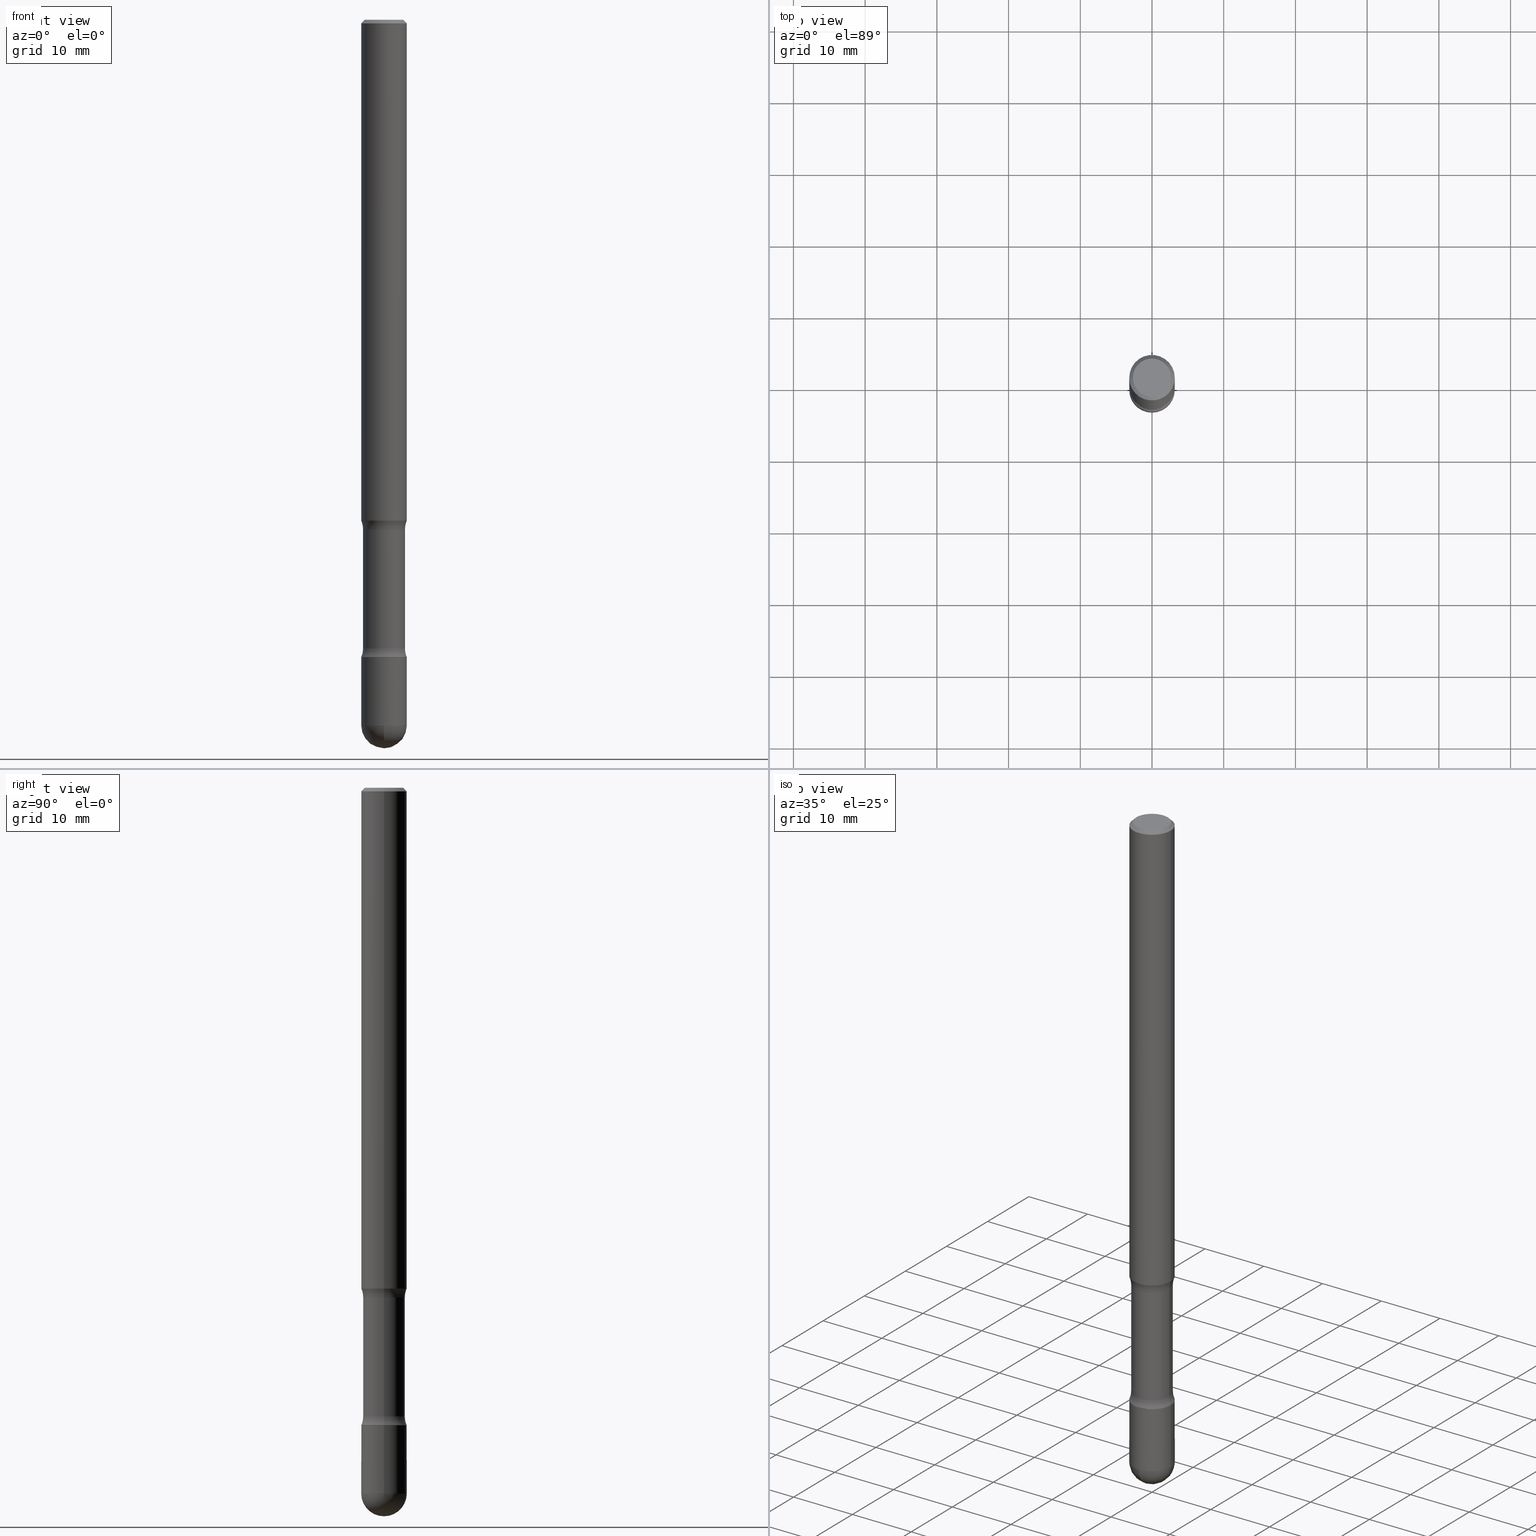
[diagram: canonical four-view strip — front | top / right | iso, engineering-drawing reading convention]
A machine part, canonical four-view strip (front | top / right | iso — engineering-drawing reading convention). The complete STEP part file that produces these views, byte-faithful:
ISO-10303-21;
HEADER;
FILE_DESCRIPTION (( 'STEP AP203' ),
    '1' );
FILE_NAME ('36480.STEP',
    '2024-02-29T19:24:48',
    ( '' ),
    ( '' ),
    'SwSTEP 2.0',
    'SolidWorks 2023',
    '' );
FILE_SCHEMA (( 'CONFIG_CONTROL_DESIGN' ));
ENDSEC;

DATA;
#1 = ORIENTED_EDGE ( 'NONE', *, *, #37, .T. ) ;
#2 = CARTESIAN_POINT ( 'NONE',  ( 0.2399999999999878897, -1.141914015581603833E-14, -2.798989794855663682 ) ) ;
#3 = ORIENTED_EDGE ( 'NONE', *, *, #491, .T. ) ;
#4 = DIRECTION ( 'NONE',  ( 1.000000000000000000, -6.982962677686265922E-15, 4.883557194083113462E-29 ) ) ;
#5 = CARTESIAN_POINT ( 'NONE',  ( 4.890937612370354609E-31, -6.982962677686407473E-17, -0.02000000000000033348 ) ) ;
#6 = VECTOR ( 'NONE', #102, 39.37007874015748143 ) ;
#7 = ADVANCED_FACE ( 'NONE', ( #298 ), #241, .T. ) ;
#8 = CIRCLE ( 'NONE', #41, 0.1244999999999993195 ) ;
#9 = CARTESIAN_POINT ( 'NONE',  ( -0.2400000000000005740, -1.037322668877399552E-14, -3.451010205144335874 ) ) ;
#10 = ORIENTED_EDGE ( 'NONE', *, *, #510, .F. ) ;
#11 = EDGE_LOOP ( 'NONE', ( #12, #217, #316, #471 ) ) ;
#12 = ORIENTED_EDGE ( 'NONE', *, *, #264, .F. ) ;
#13 = DIRECTION ( 'NONE',  ( -1.000000000000000000, 6.982962677686274599E-15, 0.000000000000000000 ) ) ;
#14 = EDGE_LOOP ( 'NONE', ( #253, #379, #92, #93 ) ) ;
#15 = ORIENTED_EDGE ( 'NONE', *, *, #146, .F. ) ;
#16 = EDGE_LOOP ( 'NONE', ( #364, #327, #546, #540 ) ) ;
#17 = DIRECTION ( 'NONE',  ( -6.982962677686266711E-15, -1.000000000000000000, 3.491481338843145583E-15 ) ) ;
#18 = EDGE_LOOP ( 'NONE', ( #312, #45, #462, #76 ) ) ;
#19 = ORIENTED_EDGE ( 'NONE', *, *, #183, .F. ) ;
#20 = ORIENTED_EDGE ( 'NONE', *, *, #249, .F. ) ;
#21 = CLOSED_SHELL ( 'NONE', ( #299, #448, #156, #484, #136, #216, #409, #324, #398, #276, #224, #541, #422, #548 ) ) ;
#22 = PRODUCT ( '36480', '36480', '', ( #384 ) ) ;
#23 = DIRECTION ( 'NONE',  ( 2.445468806185136597E-29, -3.491481338843145583E-15, -1.000000000000000000 ) ) ;
#24 = AXIS2_PLACEMENT_3D ( 'NONE', #557, #555, #561 ) ;
#25 = ORIENTED_EDGE ( 'NONE', *, *, #79, .T. ) ;
#26 = DIRECTION ( 'NONE',  ( 2.445468806185136597E-29, -3.491481338843145583E-15, -1.000000000000000000 ) ) ;
#27 = LINE ( 'NONE', #335, #339 ) ;
#28 = APPLICATION_CONTEXT ( 'configuration controlled 3d designs of mechanical parts and assemblies' ) ;
#29 = EDGE_CURVE ( 'NONE', #254, #181, #164, .T. ) ;
#30 = DIRECTION ( 'NONE',  ( 2.438088387897960049E-29, -3.491481338843145188E-15, -1.000000000000000000 ) ) ;
#31 = AXIS2_PLACEMENT_3D ( 'NONE', #343, #51, #302 ) ;
#32 = PRODUCT_DEFINITION_FORMATION_WITH_SPECIFIED_SOURCE ( 'ANY', '', #22, .NOT_KNOWN. ) ;
#33 = LINE ( 'NONE', #375, #96 ) ;
#34 = VERTEX_POINT ( 'NONE', #337 ) ;
#35 = PERSON_AND_ORGANIZATION ( #71, #413 ) ;
#36 = CARTESIAN_POINT ( 'NONE',  ( 0.1249999999999996947, -9.273918764983033630E-16, -0.02000000000000033348 ) ) ;
#37 = EDGE_CURVE ( 'NONE', #414, #57, #244, .T. ) ;
#38 = DIRECTION ( 'NONE',  ( -2.445468806185136597E-29, 3.491481338843145583E-15, 1.000000000000000000 ) ) ;
#39 = DIRECTION ( 'NONE',  ( 2.445468806185136597E-29, -3.491481338843145583E-15, -1.000000000000000000 ) ) ;
#40 = AXIS2_PLACEMENT_3D ( 'NONE', #511, #366, #483 ) ;
#41 = AXIS2_PLACEMENT_3D ( 'NONE', #292, #458, #117 ) ;
#42 = COORDINATED_UNIVERSAL_TIME_OFFSET ( 5, 0, .BEHIND. ) ;
#43 = DIRECTION ( 'NONE',  ( -1.000000000000000000, 6.982962677686266711E-15, 0.000000000000000000 ) ) ;
#44 = APPROVAL_STATUS ( 'not_yet_approved' ) ;
#45 = ORIENTED_EDGE ( 'NONE', *, *, #249, .T. ) ;
#46 = DIRECTION ( 'NONE',  ( 2.445468806185136597E-29, -3.491481338843145583E-15, -1.000000000000000000 ) ) ;
#47 = PERSON_AND_ORGANIZATION_ROLE ( 'design_owner' ) ;
#48 = EDGE_CURVE ( 'NONE', #295, #56, #304, .T. ) ;
#49 = LINE ( 'NONE', #82, #159 ) ;
#50 = AXIS2_PLACEMENT_3D ( 'NONE', #306, #4, #480 ) ;
#51 = DIRECTION ( 'NONE',  ( 2.445468806185136597E-29, -3.491481338843145583E-15, -1.000000000000000000 ) ) ;
#52 = PERSON_AND_ORGANIZATION ( #71, #413 ) ;
#53 = CARTESIAN_POINT ( 'NONE',  ( -0.1250000000000000278, -8.728703347107872831E-15, -2.750000000000001332 ) ) ;
#54 = EDGE_CURVE ( 'NONE', #118, #406, #534, .T. ) ;
#55 = DIRECTION ( 'NONE',  ( 1.000000000000000000, -6.982962677686266711E-15, 0.000000000000000000 ) ) ;
#56 = VERTEX_POINT ( 'NONE', #255 ) ;
#57 = VERTEX_POINT ( 'NONE', #36 ) ;
#58 = AXIS2_PLACEMENT_3D ( 'NONE', #5, #371, #111 ) ;
#59 = LOCAL_TIME ( 14, 24, 48.00000000000000000, #42 ) ;
#60 = CARTESIAN_POINT ( 'NONE',  ( 8.559140821647976968E-29, -1.222018468595100619E-14, -3.499999999999999112 ) ) ;
#61 = ORIENTED_EDGE ( 'NONE', *, *, #501, .T. ) ;
#62 = CARTESIAN_POINT ( 'NONE',  ( 9.294468787516782280E-29, -1.378972763283600285E-14, -3.875000000000000000 ) ) ;
#63 = EDGE_LOOP ( 'NONE', ( #447, #530, #482, #147 ) ) ;
#64 = DIRECTION ( 'NONE',  ( -1.000000000000000000, 6.982962677686265133E-15, -4.883557194083111780E-29 ) ) ;
#65 = CC_DESIGN_PERSON_AND_ORGANIZATION_ASSIGNMENT ( #473, #90, ( #170 ) ) ;
#66 = ORIENTED_EDGE ( 'NONE', *, *, #440, .T. ) ;
#67 = CIRCLE ( 'NONE', #138, 0.1149999999999996303 ) ;
#68 = DIRECTION ( 'NONE',  ( 2.445468806185136877E-29, -3.491481338843145188E-15, -1.000000000000000000 ) ) ;
#69 = CIRCLE ( 'NONE', #149, 0.1250000000000000000 ) ;
#70 = CC_DESIGN_SECURITY_CLASSIFICATION ( #170, ( #32 ) ) ;
#71 = PERSON ( 'UNSPECIFIED', 'UNSPECIFIED', 'UNSPECIFIED', ('UNSPECIFIED'), ('UNSPECIFIED'), ('UNSPECIFIED') ) ;
#72 = DIRECTION ( 'NONE',  ( 2.445468806185136597E-29, -3.491481338843145583E-15, -1.000000000000000000 ) ) ;
#73 = EDGE_CURVE ( 'NONE', #525, #450, #543, .T. ) ;
#74 = FACE_OUTER_BOUND ( 'NONE', #400, .T. ) ;
#75 = LINE ( 'NONE', #542, #368 ) ;
#76 = ORIENTED_EDGE ( 'NONE', *, *, #97, .F. ) ;
#77 = EDGE_LOOP ( 'NONE', ( #279, #273, #488, #61 ) ) ;
#78 = CIRCLE ( 'NONE', #40, 0.1249999999999996947 ) ;
#79 = EDGE_CURVE ( 'NONE', #254, #126, #67, .T. ) ;
#80 = DIRECTION ( 'NONE',  ( 7.105427357601001070E-15, 1.000000000000000000, 0.000000000000000000 ) ) ;
#81 = COORDINATED_UNIVERSAL_TIME_OFFSET ( 5, 0, .BEHIND. ) ;
#82 = CARTESIAN_POINT ( 'NONE',  ( 0.1244999999999993195, -1.308956353932294336E-14, -3.499999999999999112 ) ) ;
#83 = CARTESIAN_POINT ( 'NONE',  ( 8.559140821647976968E-29, -1.222018468595100619E-14, -3.499999999999999112 ) ) ;
#84 = AXIS2_PLACEMENT_3D ( 'NONE', #449, #362, #98 ) ;
#85 = AXIS2_PLACEMENT_3D ( 'NONE', #381, #507, #551 ) ;
#86 = DATE_AND_TIME ( #465, #179 ) ;
#87 = DIRECTION ( 'NONE',  ( -2.445468806185136597E-29, 3.491481338843145583E-15, 1.000000000000000000 ) ) ;
#88 = ADVANCED_BREP_SHAPE_REPRESENTATION ( '36480', ( #459, #275, #24 ), #323 ) ;
#89 = EDGE_CURVE ( 'NONE', #208, #437, #125, .T. ) ;
#90 = PERSON_AND_ORGANIZATION_ROLE ( 'classification_officer' ) ;
#91 = DIRECTION ( 'NONE',  ( 2.438088387897960049E-29, -3.491481338843145188E-15, -1.000000000000000000 ) ) ;
#92 = ORIENTED_EDGE ( 'NONE', *, *, #293, .T. ) ;
#93 = ORIENTED_EDGE ( 'NONE', *, *, #389, .F. ) ;
#94 = DIRECTION ( 'NONE',  ( -1.000000000000000000, 6.982962677686269077E-15, 0.000000000000000000 ) ) ;
#95 = VECTOR ( 'NONE', #110, 39.37007874015748143 ) ;
#96 = VECTOR ( 'NONE', #378, 39.37007874015748143 ) ;
#97 = EDGE_CURVE ( 'NONE', #107, #281, #103, .T. ) ;
#98 = DIRECTION ( 'NONE',  ( -1.000000000000000000, 6.982962677686269077E-15, 0.000000000000000000 ) ) ;
#99 = CC_DESIGN_DATE_AND_TIME_ASSIGNMENT ( #193, #355, ( #170 ) ) ;
#100 = ORIENTED_EDGE ( 'NONE', *, *, #440, .F. ) ;
#101 = DIRECTION ( 'NONE',  ( -1.000000000000000000, 6.982962677686265922E-15, -4.876176775795935793E-29 ) ) ;
#102 = DIRECTION ( 'NONE',  ( -0.7071067811865414665, 2.468850131082193557E-15, -0.7071067811865535679 ) ) ;
#103 = CIRCLE ( 'NONE', #131, 0.1250000000000000278 ) ;
#104 = AXIS2_PLACEMENT_3D ( 'NONE', #60, #194, #197 ) ;
#105 = LOCAL_TIME ( 14, 24, 48.00000000000000000, #475 ) ;
#106 = FACE_OUTER_BOUND ( 'NONE', #18, .T. ) ;
#107 = VERTEX_POINT ( 'NONE', #169 ) ;
#108 = ORIENTED_EDGE ( 'NONE', *, *, #119, .T. ) ;
#109 = CARTESIAN_POINT ( 'NONE',  ( -0.1149999999999995748, -1.141714397801708930E-14, -3.499999999999999112 ) ) ;
#110 = DIRECTION ( 'NONE',  ( 0.7071067811865414665, -7.319954787623235535E-15, -0.7071067811865535679 ) ) ;
#111 = DIRECTION ( 'NONE',  ( -1.000000000000000000, 6.982962677686266711E-15, 0.000000000000000000 ) ) ;
#112 = FACE_OUTER_BOUND ( 'NONE', #16, .T. ) ;
#113 = AXIS2_PLACEMENT_3D ( 'NONE', #250, #204, #547 ) ;
#114 = APPROVAL_PERSON_ORGANIZATION ( #52, #367, #236 ) ;
#115 = ADVANCED_FACE ( 'NONE', ( #182 ), #467, .T. ) ;
#116 = CARTESIAN_POINT ( 'NONE',  ( 8.559140821647976968E-29, -1.222018468595100619E-14, -3.499999999999999112 ) ) ;
#117 = DIRECTION ( 'NONE',  ( -1.000000000000000000, 6.982962677686273810E-15, 0.000000000000000000 ) ) ;
#118 = VERTEX_POINT ( 'NONE', #349 ) ;
#119 = EDGE_CURVE ( 'NONE', #56, #118, #167, .T. ) ;
#120 = CARTESIAN_POINT ( 'NONE',  ( 9.476191623967405434E-29, -1.352949018801719066E-14, -3.875000000000000444 ) ) ;
#121 = AXIS2_PLACEMENT_3D ( 'NONE', #397, #274, #101 ) ;
#122 = CARTESIAN_POINT ( 'NONE',  ( 9.294468787516782280E-29, -1.378972763283600285E-14, -3.875000000000000000 ) ) ;
#123 = AXIS2_PLACEMENT_3D ( 'NONE', #374, #30, #205 ) ;
#124 = AXIS2_PLACEMENT_3D ( 'NONE', #411, #23, #330 ) ;
#125 = LINE ( 'NONE', #382, #347 ) ;
#126 = VERTEX_POINT ( 'NONE', #223 ) ;
#127 = PERSON_AND_ORGANIZATION_ROLE ( 'creator' ) ;
#128 = DIRECTION ( 'NONE',  ( 6.860497997771531562E-15, 1.000000000000000000, -3.491481338843145583E-15 ) ) ;
#129 = APPLICATION_PROTOCOL_DEFINITION ( 'international standard', 'config_control_design', 1994, #200 ) ;
#130 = CARTESIAN_POINT ( 'NONE',  ( -0.1248510749934462899, -1.134712851721460918E-14, -3.499648925006552780 ) ) ;
#131 = AXIS2_PLACEMENT_3D ( 'NONE', #385, #263, #94 ) ;
#132 = CONICAL_SURFACE ( 'NONE', #478, 0.1249999999999996947, 0.7853981633974397303 ) ;
#133 = PERSON_AND_ORGANIZATION_ROLE ( 'design_supplier' ) ;
#134 = FACE_OUTER_BOUND ( 'NONE', #184, .T. ) ;
#135 = CARTESIAN_POINT ( 'NONE',  ( 8.558282278702870069E-29, -1.221895891416285396E-14, -3.499648925006552780 ) ) ;
#136 = ADVANCED_FACE ( 'NONE', ( #430 ), #432, .T. ) ;
#137 = DIRECTION ( 'NONE',  ( 2.445468806185136597E-29, -3.491481338843145583E-15, -1.000000000000000000 ) ) ;
#138 = AXIS2_PLACEMENT_3D ( 'NONE', #322, #490, #508 ) ;
#139 = TOROIDAL_SURFACE ( 'NONE', #268, 0.2400000000000005740, 0.1250000000000009714 ) ;
#140 = APPROVAL_STATUS ( 'not_yet_approved' ) ;
#141 = CARTESIAN_POINT ( 'NONE',  ( -0.2399999999999878897, -8.096709593706335812E-15, -2.798989794855663682 ) ) ;
#142 = DIRECTION ( 'NONE',  ( -2.445468806185136597E-29, 3.491481338843145583E-15, 1.000000000000000000 ) ) ;
#143 = ORIENTED_EDGE ( 'NONE', *, *, #73, .F. ) ;
#144 = EDGE_LOOP ( 'NONE', ( #277, #452, #424, #407 ) ) ;
#145 = CYLINDRICAL_SURFACE ( 'NONE', #104, 0.1149999999999995748 ) ;
#146 = EDGE_CURVE ( 'NONE', #450, #57, #419, .T. ) ;
#147 = ORIENTED_EDGE ( 'NONE', *, *, #257, .F. ) ;
#148 = AXIS2_PLACEMENT_3D ( 'NONE', #83, #46, #563 ) ;
#149 = AXIS2_PLACEMENT_3D ( 'NONE', #62, #529, #227 ) ;
#150 = CYLINDRICAL_SURFACE ( 'NONE', #487, 0.1249999999999998612 ) ;
#151 = CARTESIAN_POINT ( 'NONE',  ( 0.1249999999999996947, -9.273918764983033630E-16, -0.02000000000000033348 ) ) ;
#152 = ORIENTED_EDGE ( 'NONE', *, *, #195, .T. ) ;
#153 = ORIENTED_EDGE ( 'NONE', *, *, #564, .T. ) ;
#154 = PLANE ( 'NONE',  #123 ) ;
#155 = ORIENTED_EDGE ( 'NONE', *, *, #510, .T. ) ;
#156 = ADVANCED_FACE ( 'NONE', ( #176 ), #466, .T. ) ;
#157 = DIRECTION ( 'NONE',  ( -1.000000000000000000, 6.982962677686269077E-15, 0.000000000000000000 ) ) ;
#158 = DIRECTION ( 'NONE',  ( 1.000000000000000000, -6.982962677686272233E-15, 0.000000000000000000 ) ) ;
#159 = VECTOR ( 'NONE', #265, 39.37007874015748143 ) ;
#160 = FACE_OUTER_BOUND ( 'NONE', #14, .T. ) ;
#161 = ADVANCED_FACE ( 'NONE', ( #134 ), #513, .F. ) ;
#162 = VERTEX_POINT ( 'NONE', #390 ) ;
#163 = DIRECTION ( 'NONE',  ( -2.438088387897960049E-29, 3.491481338843145188E-15, 1.000000000000000000 ) ) ;
#164 = LINE ( 'NONE', #539, #436 ) ;
#165 = PRODUCT_RELATED_PRODUCT_CATEGORY ( 'detail', '', ( #22 ) ) ;
#166 =( CONVERSION_BASED_UNIT ( 'INCH', #386 ) LENGTH_UNIT ( ) NAMED_UNIT ( #373 ) );
#167 = CIRCLE ( 'NONE', #477, 0.1249999999999992784 ) ;
#168 = AXIS2_PLACEMENT_3D ( 'NONE', #457, #498, #377 ) ;
#169 = CARTESIAN_POINT ( 'NONE',  ( 0.1250000000000000278, -5.693263904019194869E-15, -2.750000000000001332 ) ) ;
#170 = SECURITY_CLASSIFICATION ( '', '', #307 ) ;
#171 = APPLICATION_PROTOCOL_DEFINITION ( 'international standard', 'config_control_design', 1994, #28 ) ;
#172 = ORIENTED_EDGE ( 'NONE', *, *, #79, .F. ) ;
#173 = PRODUCT_DEFINITION ( 'UNKNOWN', '', #32, #229 ) ;
#174 = DIRECTION ( 'NONE',  ( -1.000000000000000000, 6.982962677686274599E-15, 0.000000000000000000 ) ) ;
#175 = DATE_AND_TIME ( #388, #59 ) ;
#176 = FACE_OUTER_BOUND ( 'NONE', #464, .T. ) ;
#177 = VECTOR ( 'NONE', #196, 39.37007874015748143 ) ;
#178 = AXIS2_PLACEMENT_3D ( 'NONE', #363, #142, #187 ) ;
#179 = LOCAL_TIME ( 14, 24, 48.00000000000000000, #258 ) ;
#180 = PERSON_AND_ORGANIZATION ( #71, #413 ) ;
#181 = VERTEX_POINT ( 'NONE', #341 ) ;
#182 = FACE_OUTER_BOUND ( 'NONE', #235, .T. ) ;
#183 = EDGE_CURVE ( 'NONE', #404, #162, #49, .T. ) ;
#184 = EDGE_LOOP ( 'NONE', ( #435, #66 ) ) ;
#185 = DIRECTION ( 'NONE',  ( -6.982962677686266711E-15, -1.000000000000000000, 3.491481338843145583E-15 ) ) ;
#186 = ORIENTED_EDGE ( 'NONE', *, *, #338, .T. ) ;
#187 = DIRECTION ( 'NONE',  ( 1.000000000000000000, -6.982962677686273810E-15, 0.000000000000000000 ) ) ;
#188 = AXIS2_PLACEMENT_3D ( 'NONE', #122, #287, #80 ) ;
#189 = AXIS2_PLACEMENT_3D ( 'NONE', #242, #333, #499 ) ;
#190 = ORIENTED_EDGE ( 'NONE', *, *, #37, .F. ) ;
#191 = DIRECTION ( 'NONE',  ( -2.445468806185136597E-29, 3.491481338843145583E-15, 1.000000000000000000 ) ) ;
#192 = EDGE_LOOP ( 'NONE', ( #3, #155 ) ) ;
#193 = DATE_AND_TIME ( #566, #361 ) ;
#194 = DIRECTION ( 'NONE',  ( 2.445468806185136597E-29, -3.491481338843145583E-15, -1.000000000000000000 ) ) ;
#195 = EDGE_CURVE ( 'NONE', #254, #107, #412, .T. ) ;
#196 = DIRECTION ( 'NONE',  ( -2.445468806185136877E-29, 3.491481338843145188E-15, 1.000000000000000000 ) ) ;
#197 = DIRECTION ( 'NONE',  ( -1.000000000000000000, 6.982962677686265922E-15, 0.000000000000000000 ) ) ;
#198 = EDGE_LOOP ( 'NONE', ( #10, #521, #396, #19 ) ) ;
#199 = ORIENTED_EDGE ( 'NONE', *, *, #351, .F. ) ;
#200 = APPLICATION_CONTEXT ( 'configuration controlled 3d designs of mechanical parts and assemblies' ) ;
#201 = DIRECTION ( 'NONE',  ( -1.000000000000000000, 6.982962677686268288E-15, -4.883557194083113462E-29 ) ) ;
#202 = ORIENTED_EDGE ( 'NONE', *, *, #531, .F. ) ;
#203 = EDGE_CURVE ( 'NONE', #162, #211, #348, .T. ) ;
#204 = DIRECTION ( 'NONE',  ( -2.445468806185136597E-29, 3.491481338843145583E-15, 1.000000000000000000 ) ) ;
#205 = DIRECTION ( 'NONE',  ( -1.000000000000000000, 6.982962677686265922E-15, -4.876176775795935793E-29 ) ) ;
#206 = AXIS2_PLACEMENT_3D ( 'NONE', #308, #91, #395 ) ;
#207 = CARTESIAN_POINT ( 'NONE',  ( 6.844842232150059621E-29, -9.772620636350953994E-15, -2.798989794855663682 ) ) ;
#208 = VERTEX_POINT ( 'NONE', #345 ) ;
#209 = CC_DESIGN_PERSON_AND_ORGANIZATION_ASSIGNMENT ( #509, #127, ( #32 ) ) ;
#210 = PERSON_AND_ORGANIZATION ( #71, #413 ) ;
#211 = VERTEX_POINT ( 'NONE', #130 ) ;
#212 =( LENGTH_UNIT ( ) NAMED_UNIT ( * ) SI_UNIT ( $, .METRE. ) );
#213 = AXIS2_PLACEMENT_3D ( 'NONE', #288, #544, #158 ) ;
#214 = DIRECTION ( 'NONE',  ( 1.000000000000000000, -6.982962677686265922E-15, 4.876176775795935232E-29 ) ) ;
#215 = CIRCLE ( 'NONE', #332, 0.1149999999999995193 ) ;
#216 = ADVANCED_FACE ( 'NONE', ( #309 ), #132, .T. ) ;
#217 = ORIENTED_EDGE ( 'NONE', *, *, #357, .F. ) ;
#218 = FACE_OUTER_BOUND ( 'NONE', #11, .T. ) ;
#219 = CALENDAR_DATE ( 2024, 29, 2 ) ;
#220 = DIRECTION ( 'NONE',  ( 2.445468806185136597E-29, -3.491481338843145583E-15, -1.000000000000000000 ) ) ;
#221 = PERSON_AND_ORGANIZATION_ROLE ( 'creator' ) ;
#222 = EDGE_LOOP ( 'NONE', ( #500, #354, #369, #226, #100 ) ) ;
#223 = CARTESIAN_POINT ( 'NONE',  ( -0.1149999999999996303, -8.969579928417037109E-15, -2.798989794855663682 ) ) ;
#224 = ADVANCED_FACE ( 'NONE', ( #218 ), #553, .F. ) ;
#225 = CONICAL_SURFACE ( 'NONE', #58, 0.1249999999999996947, 0.7853981633974397303 ) ;
#226 = ORIENTED_EDGE ( 'NONE', *, *, #89, .T. ) ;
#227 = DIRECTION ( 'NONE',  ( -6.982962677686265922E-15, -1.000000000000000000, 0.000000000000000000 ) ) ;
#228 = VERTEX_POINT ( 'NONE', #256 ) ;
#229 = DESIGN_CONTEXT ( 'detailed design', #28, 'design' ) ;
#230 = CARTESIAN_POINT ( 'NONE',  ( 0.1244999999999993195, -1.309017642521702026E-14, -3.499999999999999112 ) ) ;
#231 = SPHERICAL_SURFACE ( 'NONE', #565, 0.1250000000000000000 ) ;
#232 = ORIENTED_EDGE ( 'NONE', *, *, #293, .F. ) ;
#233 = AXIS2_PLACEMENT_3D ( 'NONE', #325, #320, #13 ) ;
#234 = ORIENTED_EDGE ( 'NONE', *, *, #554, .F. ) ;
#235 = EDGE_LOOP ( 'NONE', ( #108, #266, #329, #558, #313 ) ) ;
#236 = APPROVAL_ROLE ( '' ) ;
#237 = CC_DESIGN_PERSON_AND_ORGANIZATION_ASSIGNMENT ( #210, #221, ( #173 ) ) ;
#238 = DIRECTION ( 'NONE',  ( 2.445468806185136597E-29, -3.491481338843145583E-15, -1.000000000000000000 ) ) ;
#239 = ORIENTED_EDGE ( 'NONE', *, *, #564, .F. ) ;
#240 = DIRECTION ( 'NONE',  ( 1.000000000000000000, -6.982962677686270655E-15, 0.000000000000000000 ) ) ;
#241 = CYLINDRICAL_SURFACE ( 'NONE', #427, 0.1249999999999993200 ) ;
#242 = CARTESIAN_POINT ( 'NONE',  ( 8.559140821647976968E-29, -1.222018468595100619E-14, -3.499999999999999112 ) ) ;
#243 = ADVANCED_FACE ( 'NONE', ( #426 ), #387, .T. ) ;
#244 = LINE ( 'NONE', #151, #95 ) ;
#245 = CIRCLE ( 'NONE', #394, 0.1250000000000009714 ) ;
#246 = FACE_OUTER_BOUND ( 'NONE', #284, .T. ) ;
#247 = FACE_OUTER_BOUND ( 'NONE', #192, .T. ) ;
#248 = PLANE ( 'NONE',  #280 ) ;
#249 = EDGE_CURVE ( 'NONE', #57, #450, #78, .T. ) ;
#250 = CARTESIAN_POINT ( 'NONE',  ( 8.559140821647976968E-29, -1.222018468595100619E-14, -3.499999999999999112 ) ) ;
#251 = CIRCLE ( 'NONE', #469, 0.1249999999999992784 ) ;
#252 = CIRCLE ( 'NONE', #269, 0.1249999999999992784 ) ;
#253 = ORIENTED_EDGE ( 'NONE', *, *, #203, .F. ) ;
#254 = VERTEX_POINT ( 'NONE', #272 ) ;
#255 = CARTESIAN_POINT ( 'NONE',  ( 8.881784197002165430E-16, 0.1249999999999859834, -3.875000000000001332 ) ) ;
#256 = CARTESIAN_POINT ( 'NONE',  ( -0.1244999999999993195, -1.133369882510410574E-14, -3.499999999999999112 ) ) ;
#257 = EDGE_CURVE ( 'NONE', #317, #208, #251, .T. ) ;
#258 = COORDINATED_UNIVERSAL_TIME_OFFSET ( 5, 0, .BEHIND. ) ;
#259 = CLOSED_SHELL ( 'NONE', ( #115, #380, #243, #7, #161 ) ) ;
#260 = AXIS2_PLACEMENT_3D ( 'NONE', #328, #453, #415 ) ;
#261 = DIRECTION ( 'NONE',  ( -2.445468806185136877E-29, 3.491481338843145188E-15, 1.000000000000000000 ) ) ;
#262 = PERSON_AND_ORGANIZATION ( #71, #413 ) ;
#263 = DIRECTION ( 'NONE',  ( 2.445468806185136597E-29, -3.491481338843145583E-15, -1.000000000000000000 ) ) ;
#264 = EDGE_CURVE ( 'NONE', #162, #181, #245, .T. ) ;
#265 = DIRECTION ( 'NONE',  ( 0.7071067811868914088, -2.468850131085858605E-15, 0.7071067811862036256 ) ) ;
#266 = ORIENTED_EDGE ( 'NONE', *, *, #54, .T. ) ;
#267 = DIRECTION ( 'NONE',  ( 2.445468806185136597E-29, -3.491481338843145583E-15, -1.000000000000000000 ) ) ;
#268 = AXIS2_PLACEMENT_3D ( 'NONE', #492, #72, #201 ) ;
#269 = AXIS2_PLACEMENT_3D ( 'NONE', #120, #38, #301 ) ;
#270 = EDGE_LOOP ( 'NONE', ( #190, #493, #399, #20 ) ) ;
#271 = EDGE_LOOP ( 'NONE', ( #494, #186, #234, #319 ) ) ;
#272 = CARTESIAN_POINT ( 'NONE',  ( 0.1149999999999996303, -1.051035691881738827E-14, -2.798989794855663682 ) ) ;
#273 = ORIENTED_EDGE ( 'NONE', *, *, #519, .F. ) ;
#274 = DIRECTION ( 'NONE',  ( 2.445468806185136597E-29, -3.491481338843145583E-15, -1.000000000000000000 ) ) ;
#275 = MANIFOLD_SOLID_BREP ( 'Body-Move/Copy2[2]', #21 ) ;
#276 = ADVANCED_FACE ( 'NONE', ( #441 ), #145, .T. ) ;
#277 = ORIENTED_EDGE ( 'NONE', *, *, #146, .T. ) ;
#278 = DIRECTION ( 'NONE',  ( 6.860497997771531562E-15, 1.000000000000000000, -3.491481338843145583E-15 ) ) ;
#279 = ORIENTED_EDGE ( 'NONE', *, *, #195, .F. ) ;
#280 = AXIS2_PLACEMENT_3D ( 'NONE', #549, #163, #502 ) ;
#281 = VERTEX_POINT ( 'NONE', #53 ) ;
#282 = APPROVAL_DATE_TIME ( #443, #367 ) ;
#283 = DIRECTION ( 'NONE',  ( -1.000000000000000000, 6.860497997771538662E-15, 0.000000000000000000 ) ) ;
#284 = EDGE_LOOP ( 'NONE', ( #172, #152, #550, #199 ) ) ;
#285 = EDGE_CURVE ( 'NONE', #126, #34, #451, .T. ) ;
#286 = CARTESIAN_POINT ( 'NONE',  ( 6.844842232150059621E-29, -9.772620636350953994E-15, -2.798989794855663682 ) ) ;
#287 = DIRECTION ( 'NONE',  ( 1.000000000000000000, -7.105427357601001070E-15, 4.926315508542082329E-29 ) ) ;
#288 = CARTESIAN_POINT ( 'NONE',  ( 9.476191623967405434E-29, -1.352949018801719066E-14, -3.875000000000000444 ) ) ;
#289 = AXIS2_PLACEMENT_3D ( 'NONE', #207, #26, #64 ) ;
#290 = CC_DESIGN_APPROVAL ( #334, ( #173 ) ) ;
#291 = DIRECTION ( 'NONE',  ( -2.445468806185136597E-29, 3.491481338843145583E-15, 1.000000000000000000 ) ) ;
#292 = CARTESIAN_POINT ( 'NONE',  ( 8.559140821647976968E-29, -1.222018468595100619E-14, -3.499999999999999112 ) ) ;
#293 = EDGE_CURVE ( 'NONE', #181, #34, #297, .T. ) ;
#294 = DIRECTION ( 'NONE',  ( 1.000000000000000000, -6.982962677686273810E-15, 0.000000000000000000 ) ) ;
#295 = VERTEX_POINT ( 'NONE', #405 ) ;
#296 = DIRECTION ( 'NONE',  ( 2.445468806185136597E-29, -3.491481338843145583E-15, -1.000000000000000000 ) ) ;
#297 = CIRCLE ( 'NONE', #84, 0.1149999999999995193 ) ;
#298 = FACE_OUTER_BOUND ( 'NONE', #222, .T. ) ;
#299 = ADVANCED_FACE ( 'NONE', ( #486 ), #537, .T. ) ;
#300 = DIRECTION ( 'NONE',  ( -2.445468806185136597E-29, 3.491481338843145583E-15, 1.000000000000000000 ) ) ;
#301 = DIRECTION ( 'NONE',  ( 1.000000000000000000, -6.982962677686272233E-15, 0.000000000000000000 ) ) ;
#302 = DIRECTION ( 'NONE',  ( -1.000000000000000000, 6.982962677686268288E-15, -4.883557194083113462E-29 ) ) ;
#303 =( NAMED_UNIT ( * ) PLANE_ANGLE_UNIT ( ) SI_UNIT ( $, .RADIAN. ) );
#304 = CIRCLE ( 'NONE', #188, 0.1250000000000000000 ) ;
#305 = AXIS2_PLACEMENT_3D ( 'NONE', #286, #137, #310 ) ;
#306 = CARTESIAN_POINT ( 'NONE',  ( 9.294468787516782280E-29, -1.378972763283600285E-14, -3.875000000000000000 ) ) ;
#307 = SECURITY_CLASSIFICATION_LEVEL ( 'unclassified' ) ;
#308 = CARTESIAN_POINT ( 'NONE',  ( 8.559140821647976968E-29, -1.222018468595100619E-14, -3.499999999999999112 ) ) ;
#309 = FACE_OUTER_BOUND ( 'NONE', #358, .T. ) ;
#310 = DIRECTION ( 'NONE',  ( -1.000000000000000000, 6.982962677686265133E-15, -4.883557194083111780E-29 ) ) ;
#311 = CIRCLE ( 'NONE', #121, 0.1049999999999997047 ) ;
#312 = ORIENTED_EDGE ( 'NONE', *, *, #460, .F. ) ;
#313 = ORIENTED_EDGE ( 'NONE', *, *, #476, .T. ) ;
#314 = CARTESIAN_POINT ( 'NONE',  ( 9.476191623967405434E-29, -1.352949018801719066E-14, -3.875000000000000444 ) ) ;
#315 = EDGE_CURVE ( 'NONE', #414, #525, #311, .T. ) ;
#316 = ORIENTED_EDGE ( 'NONE', *, *, #389, .T. ) ;
#317 = VERTEX_POINT ( 'NONE', #444 ) ;
#318 = DIRECTION ( 'NONE',  ( 1.000000000000000000, -6.982962677686272233E-15, 0.000000000000000000 ) ) ;
#319 = ORIENTED_EDGE ( 'NONE', *, *, #119, .F. ) ;
#320 = DIRECTION ( 'NONE',  ( 2.445468806185136597E-29, -3.491481338843145583E-15, -1.000000000000000000 ) ) ;
#321 = AXIS2_PLACEMENT_3D ( 'NONE', #434, #39, #552 ) ;
#322 = CARTESIAN_POINT ( 'NONE',  ( 6.844842232150059621E-29, -9.772620636350953994E-15, -2.798989794855663682 ) ) ;
#323 =( GEOMETRIC_REPRESENTATION_CONTEXT ( 3 ) GLOBAL_UNCERTAINTY_ASSIGNED_CONTEXT ( ( #515 ) ) GLOBAL_UNIT_ASSIGNED_CONTEXT ( ( #166, #303, #429 ) ) REPRESENTATION_CONTEXT ( 'NONE', 'WORKASPACE' ) );
#324 = ADVANCED_FACE ( 'NONE', ( #106 ), #150, .T. ) ;
#325 = CARTESIAN_POINT ( 'NONE',  ( 8.558282278702870069E-29, -1.221895891416285396E-14, -3.499648925006552780 ) ) ;
#326 = CARTESIAN_POINT ( 'NONE',  ( -0.1249999999999993200, 8.881784197001204006E-16, -6.148668862818598596E-30 ) ) ;
#327 = ORIENTED_EDGE ( 'NONE', *, *, #491, .F. ) ;
#328 = CARTESIAN_POINT ( 'NONE',  ( 6.725039217009129004E-29, -9.601573681818656170E-15, -2.750000000000001332 ) ) ;
#329 = ORIENTED_EDGE ( 'NONE', *, *, #431, .F. ) ;
#330 = DIRECTION ( 'NONE',  ( -1.000000000000000000, 6.982962677686261977E-15, 0.000000000000000000 ) ) ;
#331 = AXIS2_PLACEMENT_3D ( 'NONE', #135, #267, #174 ) ;
#332 = AXIS2_PLACEMENT_3D ( 'NONE', #418, #296, #157 ) ;
#333 = DIRECTION ( 'NONE',  ( 2.445468806185136597E-29, -3.491481338843145583E-15, -1.000000000000000000 ) ) ;
#334 = APPROVAL ( #344, 'UNSPECIFIED' ) ;
#335 = CARTESIAN_POINT ( 'NONE',  ( -0.1244999999999993195, -1.133555897992968737E-14, -3.499999999999999112 ) ) ;
#336 = CARTESIAN_POINT ( 'NONE',  ( 0.1249999999999993477, -1.309305502066178637E-14, -3.499999999999999112 ) ) ;
#337 = CARTESIAN_POINT ( 'NONE',  ( -0.1149999999999995193, -1.124609702348478517E-14, -3.451010205144335430 ) ) ;
#338 = EDGE_CURVE ( 'NONE', #295, #317, #69, .T. ) ;
#339 = VECTOR ( 'NONE', #421, 39.37007874015748143 ) ;
#340 = APPROVAL_PERSON_ORGANIZATION ( #35, #334, #512 ) ;
#341 = CARTESIAN_POINT ( 'NONE',  ( 0.1149999999999995193, -1.169983645362854980E-14, -3.451010205144335430 ) ) ;
#342 = DATE_AND_TIME ( #219, #528 ) ;
#343 = CARTESIAN_POINT ( 'NONE',  ( 8.439337806507041867E-29, -1.204913773141870521E-14, -3.451010205144335874 ) ) ;
#344 = APPROVAL_STATUS ( 'not_yet_approved' ) ;
#345 = CARTESIAN_POINT ( 'NONE',  ( 0.1249999999999992784, -1.374770777169487624E-14, -3.875000000000000444 ) ) ;
#346 = APPROVAL_DATE_TIME ( #342, #522 ) ;
#347 = VECTOR ( 'NONE', #261, 39.37007874015748143 ) ;
#348 = CIRCLE ( 'NONE', #331, 0.1248510749934462899 ) ;
#349 = CARTESIAN_POINT ( 'NONE',  ( -0.1249999999999992784, -1.198665901728397714E-14, -3.875000000000000444 ) ) ;
#350 = APPROVAL_PERSON_ORGANIZATION ( #262, #522, #352 ) ;
#351 = EDGE_CURVE ( 'NONE', #126, #281, #403, .T. ) ;
#352 = APPROVAL_ROLE ( '' ) ;
#353 = DIRECTION ( 'NONE',  ( 1.000000000000000000, -6.982962677686272233E-15, 0.000000000000000000 ) ) ;
#354 = ORIENTED_EDGE ( 'NONE', *, *, #554, .T. ) ;
#355 = DATE_TIME_ROLE ( 'classification_date' ) ;
#356 = DIRECTION ( 'NONE',  ( 2.445468806185136877E-29, -3.491481338843145188E-15, -1.000000000000000000 ) ) ;
#357 = EDGE_CURVE ( 'NONE', #211, #162, #383, .T. ) ;
#358 = EDGE_LOOP ( 'NONE', ( #153, #1, #15, #143 ) ) ;
#359 = DIRECTION ( 'NONE',  ( -1.000000000000000000, 6.982962677686270655E-15, 0.000000000000000000 ) ) ;
#360 = AXIS2_PLACEMENT_3D ( 'NONE', #141, #185, #55 ) ;
#361 = LOCAL_TIME ( 14, 24, 48.00000000000000000, #433 ) ;
#362 = DIRECTION ( 'NONE',  ( 2.445468806185136597E-29, -3.491481338843145583E-15, -1.000000000000000000 ) ) ;
#363 = CARTESIAN_POINT ( 'NONE',  ( 8.559140821647976968E-29, -1.222018468595100619E-14, -3.499999999999999112 ) ) ;
#364 = ORIENTED_EDGE ( 'NONE', *, *, #454, .F. ) ;
#365 = ORIENTED_EDGE ( 'NONE', *, *, #29, .T. ) ;
#366 = DIRECTION ( 'NONE',  ( 2.445468806185136597E-29, -3.491481338843145583E-15, -1.000000000000000000 ) ) ;
#367 = APPROVAL ( #140, 'UNSPECIFIED' ) ;
#368 = VECTOR ( 'NONE', #68, 39.37007874015748143 ) ;
#369 = ORIENTED_EDGE ( 'NONE', *, *, #257, .T. ) ;
#370 = CIRCLE ( 'NONE', #124, 0.1149999999999996303 ) ;
#371 = DIRECTION ( 'NONE',  ( 2.445468806185136597E-29, -3.491481338843145583E-15, -1.000000000000000000 ) ) ;
#372 = ORIENTED_EDGE ( 'NONE', *, *, #519, .T. ) ;
#373 = DIMENSIONAL_EXPONENTS ( 1.000000000000000000, 0.000000000000000000, 0.000000000000000000, 0.000000000000000000, 0.000000000000000000, 0.000000000000000000, 0.000000000000000000 ) ;
#374 = CARTESIAN_POINT ( 'NONE',  ( 8.693788533720209927E-16, 0.1244999999999870932, -3.500000000000000000 ) ) ;
#375 = CARTESIAN_POINT ( 'NONE',  ( 0.1249999999999998612, -1.307774693567244763E-14, -3.499999999999999112 ) ) ;
#376 = TOROIDAL_SURFACE ( 'NONE', #305, 0.2399999999999878897, 0.1249999999999882455 ) ;
#377 = DIRECTION ( 'NONE',  ( 1.000000000000000000, -6.982962677686268288E-15, 0.000000000000000000 ) ) ;
#378 = DIRECTION ( 'NONE',  ( 2.445468806185136877E-29, -3.491481338843145188E-15, -1.000000000000000000 ) ) ;
#379 = ORIENTED_EDGE ( 'NONE', *, *, #264, .T. ) ;
#380 = ADVANCED_FACE ( 'NONE', ( #442 ), #231, .T. ) ;
#381 = CARTESIAN_POINT ( 'NONE',  ( 0.000000000000000000, 0.000000000000000000, 0.000000000000000000 ) ) ;
#382 = CARTESIAN_POINT ( 'NONE',  ( 0.1249999999999993200, -8.728703347107785070E-16, 6.095220969744886110E-30 ) ) ;
#383 = CIRCLE ( 'NONE', #233, 0.1248510749934462899 ) ;
#384 = MECHANICAL_CONTEXT ( 'NONE', #200, 'mechanical' ) ;
#385 = CARTESIAN_POINT ( 'NONE',  ( 6.725039217009129004E-29, -9.601573681818656170E-15, -2.750000000000001332 ) ) ;
#386 = LENGTH_MEASURE_WITH_UNIT ( LENGTH_MEASURE( 0.02539999999999999897 ), #212 );
#387 = SPHERICAL_SURFACE ( 'NONE', #50, 0.1250000000000000000 ) ;
#388 = CALENDAR_DATE ( 2024, 29, 2 ) ;
#389 = EDGE_CURVE ( 'NONE', #211, #34, #545, .T. ) ;
#390 = CARTESIAN_POINT ( 'NONE',  ( 0.1248510749934462899, -1.307549946417501525E-14, -3.499648925006552780 ) ) ;
#391 = DATE_TIME_ROLE ( 'creation_date' ) ;
#392 = AXIS2_PLACEMENT_3D ( 'NONE', #472, #87, #214 ) ;
#393 = EDGE_LOOP ( 'NONE', ( #562, #25, #523, #232 ) ) ;
#394 = AXIS2_PLACEMENT_3D ( 'NONE', #479, #278, #283 ) ;
#395 = DIRECTION ( 'NONE',  ( -1.000000000000000000, 6.982962677686265922E-15, -4.876176775795935793E-29 ) ) ;
#396 = ORIENTED_EDGE ( 'NONE', *, *, #357, .T. ) ;
#397 = CARTESIAN_POINT ( 'NONE',  ( 0.000000000000000000, 0.000000000000000000, 0.000000000000000000 ) ) ;
#398 = ADVANCED_FACE ( 'NONE', ( #408 ), #376, .F. ) ;
#399 = ORIENTED_EDGE ( 'NONE', *, *, #73, .T. ) ;
#400 = EDGE_LOOP ( 'NONE', ( #239, #532 ) ) ;
#401 = CARTESIAN_POINT ( 'NONE',  ( -0.1249999999999993477, -1.198665901728397714E-14, -3.499999999999999112 ) ) ;
#402 = CARTESIAN_POINT ( 'NONE',  ( 9.294468787516782280E-29, -1.378972763283600285E-14, -3.875000000000000000 ) ) ;
#403 = CIRCLE ( 'NONE', #360, 0.1249999999999882455 ) ;
#404 = VERTEX_POINT ( 'NONE', #230 ) ;
#405 = CARTESIAN_POINT ( 'NONE',  ( 9.594807598982552756E-29, -1.423381684268606547E-14, -4.000000000000000000 ) ) ;
#406 = VERTEX_POINT ( 'NONE', #401 ) ;
#407 = ORIENTED_EDGE ( 'NONE', *, *, #416, .F. ) ;
#408 = FACE_OUTER_BOUND ( 'NONE', #77, .T. ) ;
#409 = ADVANCED_FACE ( 'NONE', ( #536 ), #225, .T. ) ;
#410 = DIRECTION ( 'NONE',  ( -2.445468806185136597E-29, 3.491481338843145583E-15, 1.000000000000000000 ) ) ;
#411 = CARTESIAN_POINT ( 'NONE',  ( 6.844842232150059621E-29, -9.772620636350953994E-15, -2.798989794855663682 ) ) ;
#412 = CIRCLE ( 'NONE', #516, 0.1249999999999882455 ) ;
#413 = ORGANIZATION ( 'UNSPECIFIED', 'UNSPECIFIED', '' ) ;
#414 = VERTEX_POINT ( 'NONE', #461 ) ;
#415 = DIRECTION ( 'NONE',  ( -1.000000000000000000, 6.982962677686269077E-15, 0.000000000000000000 ) ) ;
#416 = EDGE_CURVE ( 'NONE', #450, #281, #75, .T. ) ;
#417 = CARTESIAN_POINT ( 'NONE',  ( -0.1249999999999996947, 8.030407079339170824E-16, -0.02000000000000033348 ) ) ;
#418 = CARTESIAN_POINT ( 'NONE',  ( 8.439337806507040746E-29, -1.204913773141870205E-14, -3.451010205144335430 ) ) ;
#419 = CIRCLE ( 'NONE', #463, 0.1249999999999996947 ) ;
#420 = VECTOR ( 'NONE', #356, 39.37007874015748143 ) ;
#421 = DIRECTION ( 'NONE',  ( -0.7071067811868914088, 7.493145998871597405E-15, 0.7071067811862036256 ) ) ;
#422 = ADVANCED_FACE ( 'NONE', ( #247 ), #154, .T. ) ;
#423 = DIRECTION ( 'NONE',  ( 1.000000000000000000, -6.982962677686265922E-15, 4.876176775795935232E-29 ) ) ;
#424 = ORIENTED_EDGE ( 'NONE', *, *, #501, .F. ) ;
#425 = CC_DESIGN_PERSON_AND_ORGANIZATION_ASSIGNMENT ( #517, #133, ( #32 ) ) ;
#426 = FACE_OUTER_BOUND ( 'NONE', #271, .T. ) ;
#427 = AXIS2_PLACEMENT_3D ( 'NONE', #446, #410, #423 ) ;
#428 = CIRCLE ( 'NONE', #189, 0.1244999999999993195 ) ;
#429 =( NAMED_UNIT ( * ) SI_UNIT ( $, .STERADIAN. ) SOLID_ANGLE_UNIT ( ) );
#430 = FACE_OUTER_BOUND ( 'NONE', #144, .T. ) ;
#431 = EDGE_CURVE ( 'NONE', #437, #406, #438, .T. ) ;
#432 = CYLINDRICAL_SURFACE ( 'NONE', #148, 0.1249999999999998612 ) ;
#433 = COORDINATED_UNIVERSAL_TIME_OFFSET ( 5, 0, .BEHIND. ) ;
#434 = CARTESIAN_POINT ( 'NONE',  ( 8.559140821647976968E-29, -1.222018468595100619E-14, -3.499999999999999112 ) ) ;
#435 = ORIENTED_EDGE ( 'NONE', *, *, #431, .T. ) ;
#436 = VECTOR ( 'NONE', #503, 39.37007874015748143 ) ;
#437 = VERTEX_POINT ( 'NONE', #336 ) ;
#438 = CIRCLE ( 'NONE', #168, 0.1249999999999993477 ) ;
#439 = CARTESIAN_POINT ( 'NONE',  ( 4.890937612370354609E-31, -6.982962677686407473E-17, -0.02000000000000033348 ) ) ;
#440 = EDGE_CURVE ( 'NONE', #406, #437, #504, .T. ) ;
#441 = FACE_OUTER_BOUND ( 'NONE', #393, .T. ) ;
#442 = FACE_OUTER_BOUND ( 'NONE', #63, .T. ) ;
#443 = DATE_AND_TIME ( #535, #105 ) ;
#444 = CARTESIAN_POINT ( 'NONE',  ( -8.728703347106869006E-16, -0.1250000000000132949, -3.875000000000000000 ) ) ;
#445 = AXIS2_PLACEMENT_3D ( 'NONE', #9, #17, #240 ) ;
#446 = CARTESIAN_POINT ( 'NONE',  ( 0.000000000000000000, 0.000000000000000000, 0.000000000000000000 ) ) ;
#447 = ORIENTED_EDGE ( 'NONE', *, *, #338, .F. ) ;
#448 = ADVANCED_FACE ( 'NONE', ( #160 ), #139, .F. ) ;
#449 = CARTESIAN_POINT ( 'NONE',  ( 8.439337806507040746E-29, -1.204913773141870205E-14, -3.451010205144335430 ) ) ;
#450 = VERTEX_POINT ( 'NONE', #417 ) ;
#451 = LINE ( 'NONE', #109, #420 ) ;
#452 = ORIENTED_EDGE ( 'NONE', *, *, #460, .T. ) ;
#453 = DIRECTION ( 'NONE',  ( 2.445468806185136597E-29, -3.491481338843145583E-15, -1.000000000000000000 ) ) ;
#454 = EDGE_CURVE ( 'NONE', #228, #211, #27, .T. ) ;
#455 = CIRCLE ( 'NONE', #213, 0.1249999999999992784 ) ;
#456 = CC_DESIGN_APPROVAL ( #522, ( #32 ) ) ;
#457 = CARTESIAN_POINT ( 'NONE',  ( 8.559140821647976968E-29, -1.222018468595100619E-14, -3.499999999999999112 ) ) ;
#458 = DIRECTION ( 'NONE',  ( 2.445468806185136597E-29, -3.491481338843145583E-15, -1.000000000000000000 ) ) ;
#459 = MANIFOLD_SOLID_BREP ( 'Body-Move/Copy2[1]', #259 ) ;
#460 = EDGE_CURVE ( 'NONE', #57, #107, #33, .T. ) ;
#461 = CARTESIAN_POINT ( 'NONE',  ( 0.1049999999999997047, -8.238720831321559881E-16, 5.444276250344137453E-30 ) ) ;
#462 = ORIENTED_EDGE ( 'NONE', *, *, #416, .T. ) ;
#463 = AXIS2_PLACEMENT_3D ( 'NONE', #474, #220, #518 ) ;
#464 = EDGE_LOOP ( 'NONE', ( #372, #365, #202, #559 ) ) ;
#465 = CALENDAR_DATE ( 2024, 29, 2 ) ;
#466 = CYLINDRICAL_SURFACE ( 'NONE', #321, 0.1149999999999995748 ) ;
#467 = CYLINDRICAL_SURFACE ( 'NONE', #392, 0.1249999999999993200 ) ;
#468 = CC_DESIGN_PERSON_AND_ORGANIZATION_ASSIGNMENT ( #180, #47, ( #22 ) ) ;
#469 = AXIS2_PLACEMENT_3D ( 'NONE', #314, #191, #318 ) ;
#470 = APPROVAL_DATE_TIME ( #175, #334 ) ;
#471 = ORIENTED_EDGE ( 'NONE', *, *, #531, .T. ) ;
#472 = CARTESIAN_POINT ( 'NONE',  ( 0.000000000000000000, 0.000000000000000000, 0.000000000000000000 ) ) ;
#473 = PERSON_AND_ORGANIZATION ( #71, #413 ) ;
#474 = CARTESIAN_POINT ( 'NONE',  ( 4.890937612370354609E-31, -6.982962677686407473E-17, -0.02000000000000033348 ) ) ;
#475 = COORDINATED_UNIVERSAL_TIME_OFFSET ( 5, 0, .BEHIND. ) ;
#476 = EDGE_CURVE ( 'NONE', #208, #56, #455, .T. ) ;
#477 = AXIS2_PLACEMENT_3D ( 'NONE', #560, #300, #353 ) ;
#478 = AXIS2_PLACEMENT_3D ( 'NONE', #439, #556, #43 ) ;
#479 = CARTESIAN_POINT ( 'NONE',  ( 0.2400000000000005740, -1.369565725088387474E-14, -3.451010205144335874 ) ) ;
#480 = DIRECTION ( 'NONE',  ( -6.982962677686265922E-15, -1.000000000000000000, 4.370956789862821150E-15 ) ) ;
#481 = SHAPE_DEFINITION_REPRESENTATION ( #526, #88 ) ;
#482 = ORIENTED_EDGE ( 'NONE', *, *, #476, .F. ) ;
#483 = DIRECTION ( 'NONE',  ( -1.000000000000000000, 6.982962677686266711E-15, 0.000000000000000000 ) ) ;
#484 = ADVANCED_FACE ( 'NONE', ( #246 ), #527, .F. ) ;
#485 = CARTESIAN_POINT ( 'NONE',  ( -0.1249999999999996947, 8.030407079339170824E-16, -0.02000000000000033348 ) ) ;
#486 = FACE_OUTER_BOUND ( 'NONE', #198, .T. ) ;
#487 = AXIS2_PLACEMENT_3D ( 'NONE', #533, #238, #359 ) ;
#488 = ORIENTED_EDGE ( 'NONE', *, *, #351, .T. ) ;
#489 = DIRECTION ( 'NONE',  ( -6.982962677686265922E-15, -1.000000000000000000, 4.370956789862821150E-15 ) ) ;
#490 = DIRECTION ( 'NONE',  ( 2.445468806185136597E-29, -3.491481338843145583E-15, -1.000000000000000000 ) ) ;
#491 = EDGE_CURVE ( 'NONE', #404, #228, #428, .T. ) ;
#492 = CARTESIAN_POINT ( 'NONE',  ( 8.439337806507041867E-29, -1.204913773141870521E-14, -3.451010205144335874 ) ) ;
#493 = ORIENTED_EDGE ( 'NONE', *, *, #315, .T. ) ;
#494 = ORIENTED_EDGE ( 'NONE', *, *, #48, .F. ) ;
#495 = CARTESIAN_POINT ( 'NONE',  ( -0.1049999999999997047, 7.332110811570558550E-16, -5.119985614585718009E-30 ) ) ;
#496 = CIRCLE ( 'NONE', #260, 0.1250000000000000278 ) ;
#497 = CIRCLE ( 'NONE', #85, 0.1049999999999997047 ) ;
#498 = DIRECTION ( 'NONE',  ( -2.445468806185136597E-29, 3.491481338843145583E-15, 1.000000000000000000 ) ) ;
#499 = DIRECTION ( 'NONE',  ( -1.000000000000000000, 6.982962677686273810E-15, 0.000000000000000000 ) ) ;
#500 = ORIENTED_EDGE ( 'NONE', *, *, #54, .F. ) ;
#501 = EDGE_CURVE ( 'NONE', #281, #107, #496, .T. ) ;
#502 = DIRECTION ( 'NONE',  ( 1.000000000000000000, -6.982962677686265922E-15, 4.876176775795935793E-29 ) ) ;
#503 = DIRECTION ( 'NONE',  ( 2.445468806185136877E-29, -3.491481338843145188E-15, -1.000000000000000000 ) ) ;
#504 = CIRCLE ( 'NONE', #113, 0.1249999999999993477 ) ;
#505 = AXIS2_PLACEMENT_3D ( 'NONE', #116, #291, #294 ) ;
#506 = CC_DESIGN_APPROVAL ( #367, ( #170 ) ) ;
#507 = DIRECTION ( 'NONE',  ( 2.445468806185136597E-29, -3.491481338843145583E-15, -1.000000000000000000 ) ) ;
#508 = DIRECTION ( 'NONE',  ( -1.000000000000000000, 6.982962677686261977E-15, 0.000000000000000000 ) ) ;
#509 = PERSON_AND_ORGANIZATION ( #71, #413 ) ;
#510 = EDGE_CURVE ( 'NONE', #228, #404, #8, .T. ) ;
#511 = CARTESIAN_POINT ( 'NONE',  ( 4.890937612370354609E-31, -6.982962677686407473E-17, -0.02000000000000033348 ) ) ;
#512 = APPROVAL_ROLE ( '' ) ;
#513 = PLANE ( 'NONE',  #206 ) ;
#514 = CC_DESIGN_DATE_AND_TIME_ASSIGNMENT ( #86, #391, ( #173 ) ) ;
#515 = UNCERTAINTY_MEASURE_WITH_UNIT (LENGTH_MEASURE( 1.000000000000000082E-05 ), #166, 'distance_accuracy_value', 'NONE');
#516 = AXIS2_PLACEMENT_3D ( 'NONE', #2, #128, #520 ) ;
#517 = PERSON_AND_ORGANIZATION ( #71, #413 ) ;
#518 = DIRECTION ( 'NONE',  ( -1.000000000000000000, 6.982962677686266711E-15, 0.000000000000000000 ) ) ;
#519 = EDGE_CURVE ( 'NONE', #126, #254, #370, .T. ) ;
#520 = DIRECTION ( 'NONE',  ( -1.000000000000000000, 6.860497997771538662E-15, 0.000000000000000000 ) ) ;
#521 = ORIENTED_EDGE ( 'NONE', *, *, #454, .T. ) ;
#522 = APPROVAL ( #44, 'UNSPECIFIED' ) ;
#523 = ORIENTED_EDGE ( 'NONE', *, *, #285, .T. ) ;
#524 = DIRECTION ( 'NONE',  ( 1.000000000000000000, -6.982962677686265922E-15, 4.883557194083113462E-29 ) ) ;
#525 = VERTEX_POINT ( 'NONE', #495 ) ;
#526 = PRODUCT_DEFINITION_SHAPE ( 'NONE', 'NONE',  #173 ) ;
#527 = TOROIDAL_SURFACE ( 'NONE', #289, 0.2399999999999878897, 0.1249999999999882455 ) ;
#528 = LOCAL_TIME ( 14, 24, 48.00000000000000000, #81 ) ;
#529 = DIRECTION ( 'NONE',  ( -1.000000000000000000, 6.982962677686265922E-15, -4.883557194083112340E-29 ) ) ;
#530 = ORIENTED_EDGE ( 'NONE', *, *, #48, .T. ) ;
#531 = EDGE_CURVE ( 'NONE', #34, #181, #215, .T. ) ;
#532 = ORIENTED_EDGE ( 'NONE', *, *, #315, .F. ) ;
#533 = CARTESIAN_POINT ( 'NONE',  ( 8.559140821647976968E-29, -1.222018468595100619E-14, -3.499999999999999112 ) ) ;
#534 = LINE ( 'NONE', #326, #177 ) ;
#535 = CALENDAR_DATE ( 2024, 29, 2 ) ;
#536 = FACE_OUTER_BOUND ( 'NONE', #270, .T. ) ;
#537 = CONICAL_SURFACE ( 'NONE', #178, 0.1244999999999993195, 0.7853981633979346677 ) ;
#538 = CONICAL_SURFACE ( 'NONE', #505, 0.1244999999999993195, 0.7853981633979346677 ) ;
#539 = CARTESIAN_POINT ( 'NONE',  ( 0.1149999999999995748, -1.300914195569473112E-14, -3.499999999999999112 ) ) ;
#540 = ORIENTED_EDGE ( 'NONE', *, *, #203, .T. ) ;
#541 = ADVANCED_FACE ( 'NONE', ( #112 ), #538, .T. ) ;
#542 = CARTESIAN_POINT ( 'NONE',  ( -0.1249999999999998612, -1.134731435124022443E-14, -3.499999999999999112 ) ) ;
#543 = LINE ( 'NONE', #485, #6 ) ;
#544 = DIRECTION ( 'NONE',  ( -2.445468806185136597E-29, 3.491481338843145583E-15, 1.000000000000000000 ) ) ;
#545 = CIRCLE ( 'NONE', #445, 0.1250000000000009714 ) ;
#546 = ORIENTED_EDGE ( 'NONE', *, *, #183, .T. ) ;
#547 = DIRECTION ( 'NONE',  ( 1.000000000000000000, -6.982962677686268288E-15, 0.000000000000000000 ) ) ;
#548 = ADVANCED_FACE ( 'NONE', ( #74 ), #248, .T. ) ;
#549 = CARTESIAN_POINT ( 'NONE',  ( 7.332110811570558550E-16, 0.1049999999999997047, -3.900823592740815069E-16 ) ) ;
#550 = ORIENTED_EDGE ( 'NONE', *, *, #97, .T. ) ;
#551 = DIRECTION ( 'NONE',  ( -1.000000000000000000, 6.982962677686265922E-15, -4.876176775795935793E-29 ) ) ;
#552 = DIRECTION ( 'NONE',  ( -1.000000000000000000, 6.982962677686265922E-15, 0.000000000000000000 ) ) ;
#553 = TOROIDAL_SURFACE ( 'NONE', #31, 0.2400000000000005740, 0.1250000000000009714 ) ;
#554 = EDGE_CURVE ( 'NONE', #118, #317, #252, .T. ) ;
#555 = DIRECTION ( 'NONE',  ( 0.000000000000000000, 0.000000000000000000, 1.000000000000000000 ) ) ;
#556 = DIRECTION ( 'NONE',  ( 2.445468806185136597E-29, -3.491481338843145583E-15, -1.000000000000000000 ) ) ;
#557 = CARTESIAN_POINT ( 'NONE',  ( 0.000000000000000000, 0.000000000000000000, 0.000000000000000000 ) ) ;
#558 = ORIENTED_EDGE ( 'NONE', *, *, #89, .F. ) ;
#559 = ORIENTED_EDGE ( 'NONE', *, *, #285, .F. ) ;
#560 = CARTESIAN_POINT ( 'NONE',  ( 9.476191623967405434E-29, -1.352949018801719066E-14, -3.875000000000000444 ) ) ;
#561 = DIRECTION ( 'NONE',  ( 1.000000000000000000, 0.000000000000000000, 0.000000000000000000 ) ) ;
#562 = ORIENTED_EDGE ( 'NONE', *, *, #29, .F. ) ;
#563 = DIRECTION ( 'NONE',  ( -1.000000000000000000, 6.982962677686270655E-15, 0.000000000000000000 ) ) ;
#564 = EDGE_CURVE ( 'NONE', #525, #414, #497, .T. ) ;
#565 = AXIS2_PLACEMENT_3D ( 'NONE', #402, #524, #489 ) ;
#566 = CALENDAR_DATE ( 2024, 29, 2 ) ;
ENDSEC;
END-ISO-10303-21;
